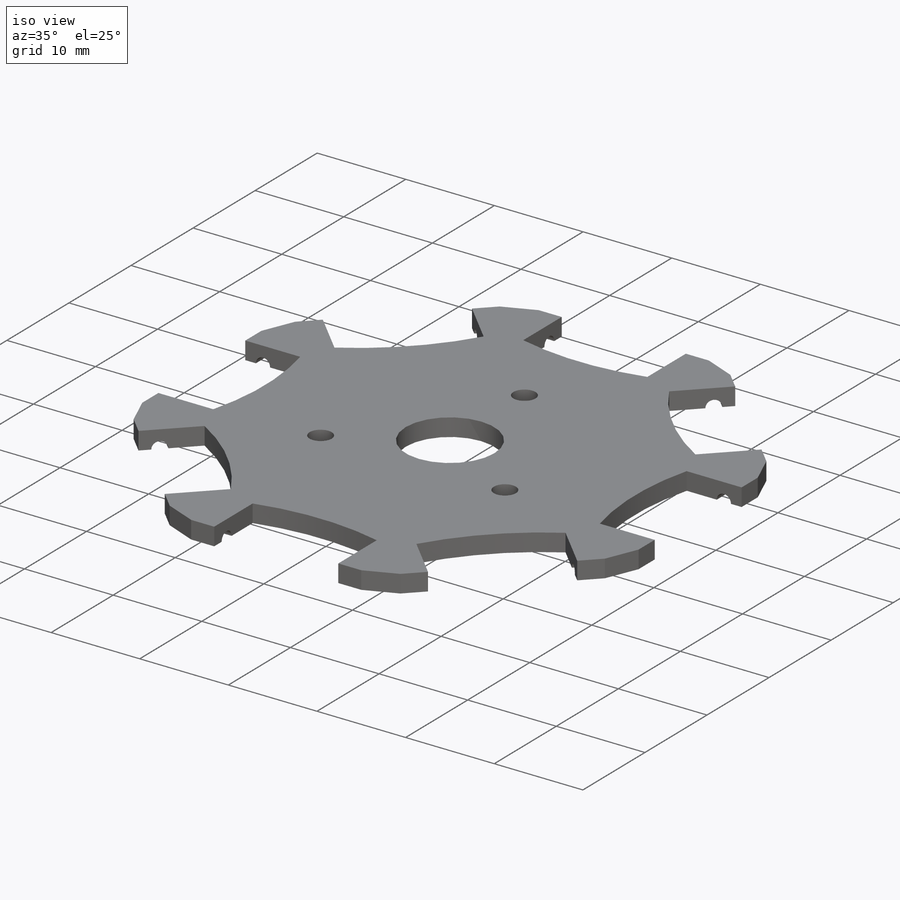
[diagram: iso view]
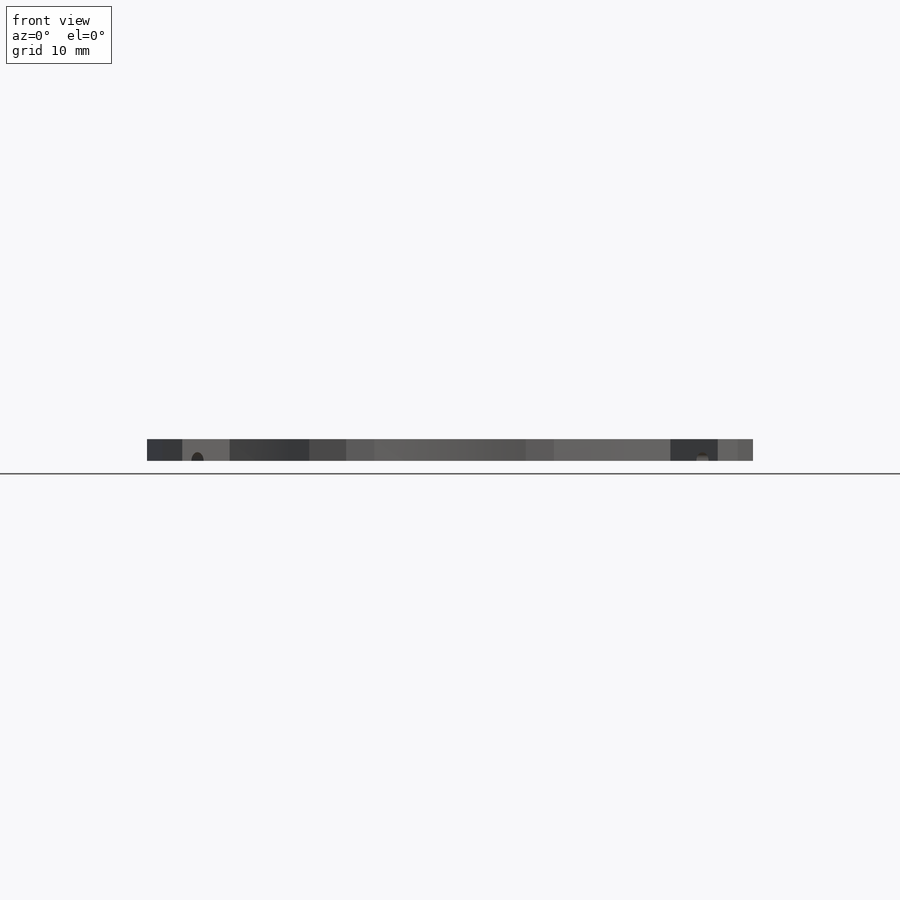
[diagram: front view]
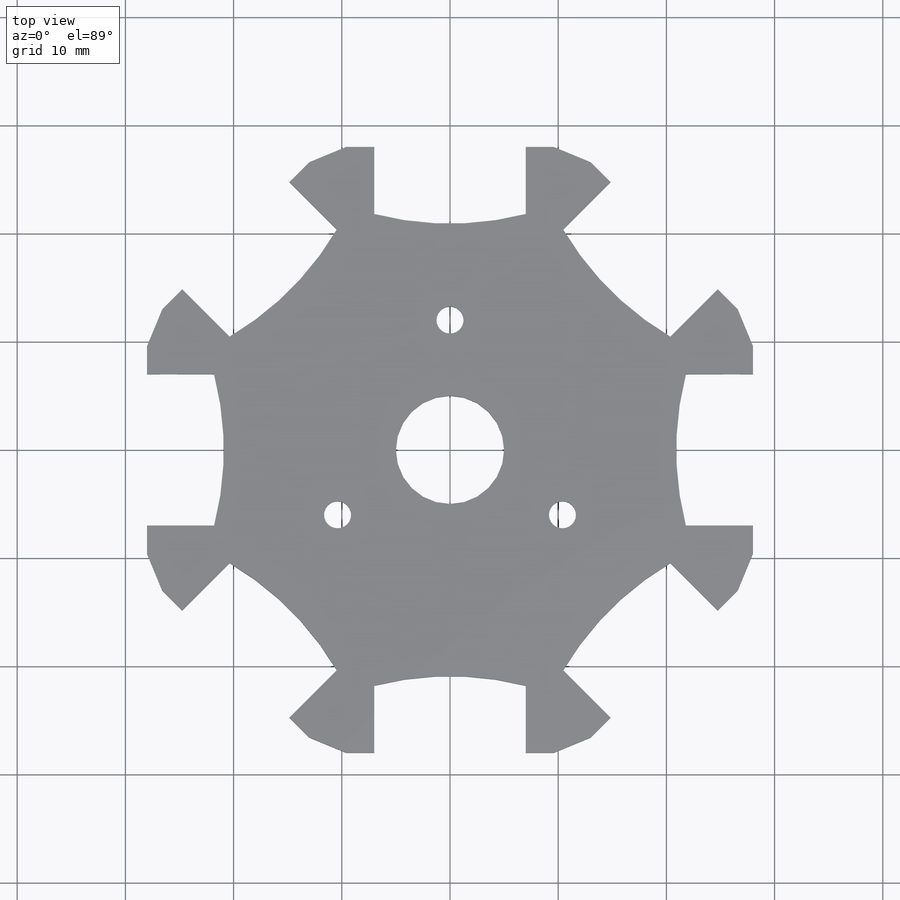
[diagram: top view]
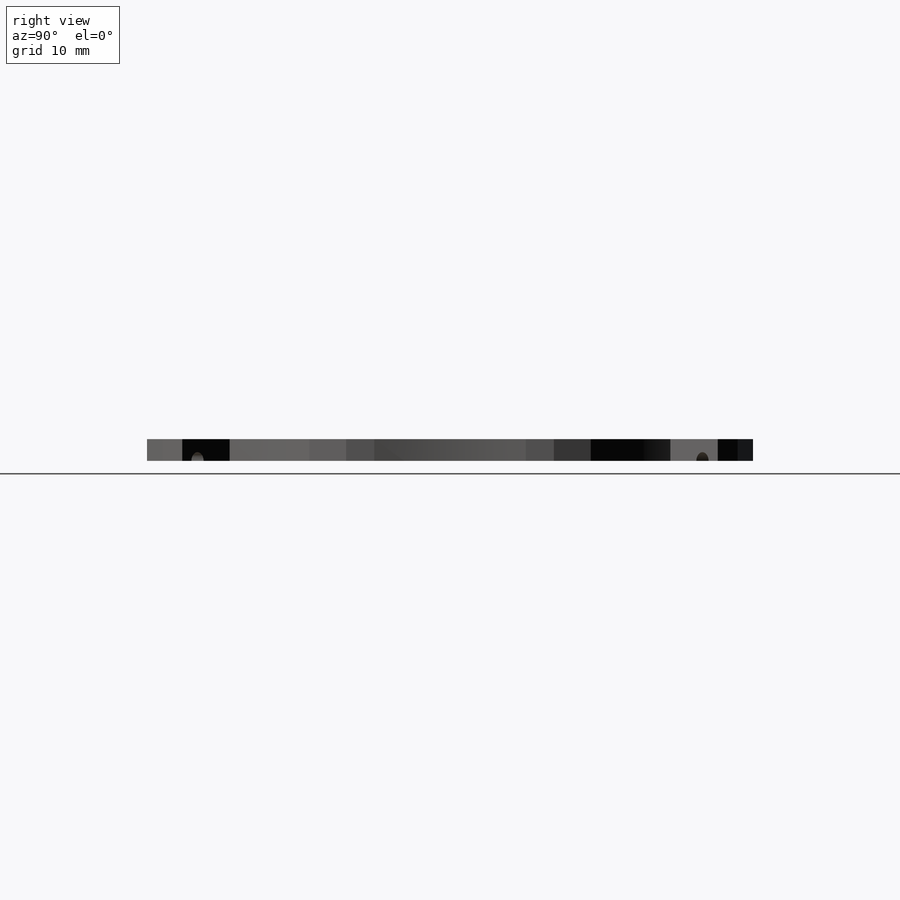
[diagram: right view]
SOLIDWORKS PART (.sldprt)
format: sldprt  version: not decoded by parser v0  size: 275,968 bytes
history: native  units: mm
features: sketch x5, cut_extrude x2, material x1, extrude x1, chamfer x1, pattern_circular x1, hole x1 (+12 scaffold rows collapsed)
feature tree (24):
  scaffold x12  (default folders/planes/origin — collapsed)
  material  "Material <not specified>"
  sketch  "Sketch2"  dims[D5=28.0mm D7=10.0mm D1=23.196mm D2=14.0mm D3=6.2mm D4=4.598mm D6=8.0]
  extrude  "Boss-Extrude2"  Depth=2mm
  sketch  "Sketch3"  dims[D1=1.6mm D2=2.0mm]
  cut_extrude  "Cut-Extrude1"  Depth=2mm
  sketch  "Sketch4"  dims[D1=1.6mm D2=2.0mm]
  cut_extrude  "Cut-Extrude2"  Depth=2mm
  chamfer  "Chamfer1"  Distance=2mm
  pattern_circular  "CirPattern3"  Count=8 Angle=45deg
  hole  "Ø2.5mm Dowel Hole1"  Diameter=2.5mm Depth=10mm
  sketch  "Sketch6"  dims[D1=12.0mm D2=3.0]
  sketch  "Sketch5"  dims[hole-wizard template sketch: 50 standard entries collapsed; hole parameters above]
decode coverage: 11 of 11 modeling features carry decoded parameters
note: ~ marks probable driven/reference dimensions
note: suppression state not decoded; provenance and decode notes live in map.json
